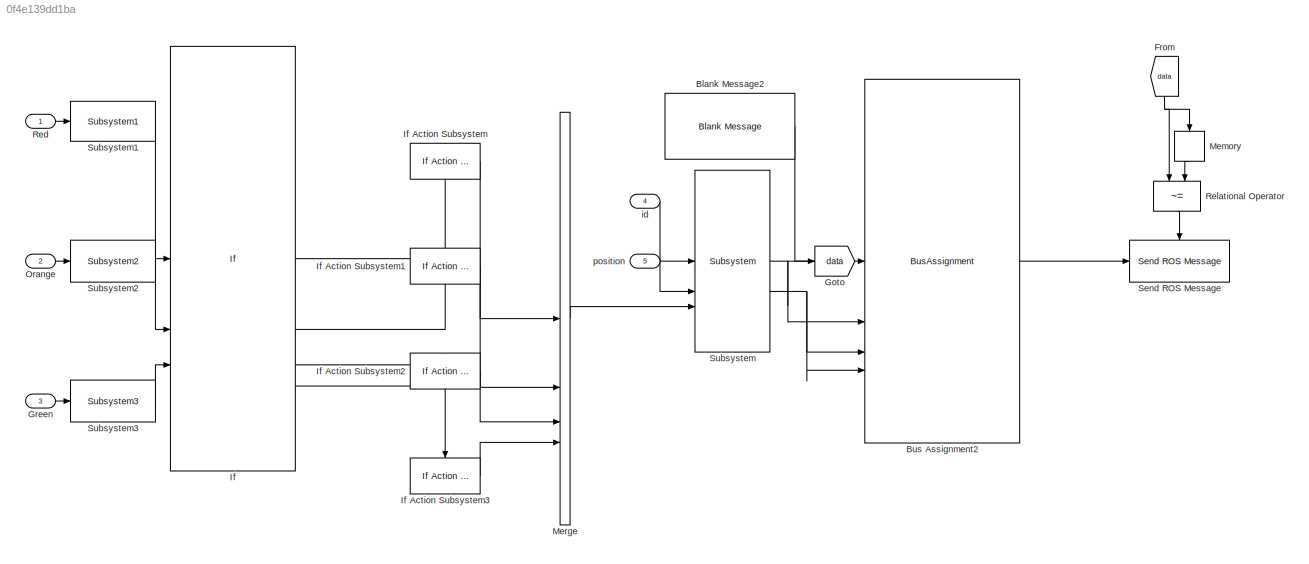
MODEL slx_0f4e139dd1ba
KIND model
CONFIG AbsTol = auto
CONFIG EnableMultiTasking = off
CONFIG FixedStep = auto
CONFIG MaxStep = auto
CONFIG MinStep = auto
CONFIG RelTol = 1e-3
CONFIG SampleTimeConstraint = Unconstrained
CONFIG SolverName = VariableStepAuto
CONFIG StartTime = 0.0
CONFIG StopTime = 10.0
BLOCK [Reference] Blank Message2  REF=robotlib/Blank Message
  SourceBlock = robotlib/Blank Message
  SourceType = ROS Blank Message
BLOCK [BusAssignment] Bus Assignment2
  AssignedSignals = Data,Data_SL_Info.CurrentLength,Data_SL_Info.ReceivedLength
BLOCK [From] From
  GotoTag = data
  NameLocation = left
BLOCK [Goto] Goto
  GotoTag = data
BLOCK [Inport] Green
  Port = 3
BLOCK [If] If
  ElseIfExpressions = u2 ~= 0, u3 ~= 0
  IfExpression = u1 ~= 0
  NumInputs = 3
BLOCK [Reference] If Action Subsystem  REF=MainLibrary/TrafficLight2ROSmessage/Traffic Light Ros Message/If Action
Subsystem
  SourceBlock = MainLibrary/TrafficLight2ROSmessage/Traffic Light Ros Message/If Action\nSubsystem
  SourceProductName = Custom_Prescan-ROS_Library
  SourceType = SubSystem
BLOCK [Reference] If Action Subsystem1  REF=MainLibrary/TrafficLight2ROSmessage/Traffic Light Ros Message/If Action
Subsystem1
  SourceBlock = MainLibrary/TrafficLight2ROSmessage/Traffic Light Ros Message/If Action\nSubsystem1
  SourceProductName = Custom_Prescan-ROS_Library
  SourceType = SubSystem
BLOCK [Reference] If Action Subsystem2  REF=MainLibrary/TrafficLight2ROSmessage/Traffic Light Ros Message/If Action
Subsystem2
  SourceBlock = MainLibrary/TrafficLight2ROSmessage/Traffic Light Ros Message/If Action\nSubsystem2
  SourceProductName = Custom_Prescan-ROS_Library
  SourceType = SubSystem
BLOCK [Reference] If Action Subsystem3  REF=MainLibrary/TrafficLight2ROSmessage/Traffic Light Ros Message/If Action
Subsystem3
  SourceBlock = MainLibrary/TrafficLight2ROSmessage/Traffic Light Ros Message/If Action\nSubsystem3
  SourceProductName = Custom_Prescan-ROS_Library
  SourceType = SubSystem
BLOCK [Memory] Memory
  InitialCondition = zeros(1,128)
  NameLocation = left
BLOCK [Merge] Merge
  Inputs = 4
BLOCK [Inport] Orange
  Port = 2
BLOCK [Inport] Red
BLOCK [RelationalOperator] Relational Operator
  InputSameDT = off
  NameLocation = left
  Operator = ~=
  OutDataTypeStr = boolean
  RndMeth = Simplest
BLOCK [Reference] Send ROS Message  REF=MainLibrary/TrafficLight2ROSmessage/Traffic Light Ros Message/Send ROS Message
  SourceBlock = MainLibrary/TrafficLight2ROSmessage/Traffic Light Ros Message/Send ROS Message
  SourceProductName = Custom_Prescan-ROS_Library
  SourceType = SubSystem
BLOCK [Reference] Subsystem  REF=MainLibrary/TrafficLight2ROSmessage/Traffic Light Ros Message/Subsystem
  SourceBlock = MainLibrary/TrafficLight2ROSmessage/Traffic Light Ros Message/Subsystem
  SourceProductName = Custom_Prescan-ROS_Library
  SourceType = SubSystem
BLOCK [Reference] Subsystem1  REF=MainLibrary/TrafficLight2ROSmessage/Traffic Light Ros Message/Subsystem1
  SourceBlock = MainLibrary/TrafficLight2ROSmessage/Traffic Light Ros Message/Subsystem1
  SourceProductName = Custom_Prescan-ROS_Library
  SourceType = SubSystem
BLOCK [Reference] Subsystem2  REF=MainLibrary/TrafficLight2ROSmessage/Traffic Light Ros Message/Subsystem2
  SourceBlock = MainLibrary/TrafficLight2ROSmessage/Traffic Light Ros Message/Subsystem2
  SourceProductName = Custom_Prescan-ROS_Library
  SourceType = SubSystem
BLOCK [Reference] Subsystem3  REF=MainLibrary/TrafficLight2ROSmessage/Traffic Light Ros Message/Subsystem3
  SourceBlock = MainLibrary/TrafficLight2ROSmessage/Traffic Light Ros Message/Subsystem3
  SourceProductName = Custom_Prescan-ROS_Library
  SourceType = SubSystem
BLOCK [Inport] id
  Port = 4
BLOCK [Inport] position
  Port = 5
LINE Blank Message2:1 -> Bus Assignment2:1
LINE Bus Assignment2:1 -> Send ROS Message:1
NET From:1 -> Memory:1, Relational Operator:1
LINE Green:1 -> Subsystem3:1
LINE If Action Subsystem1:1 -> Merge:2
LINE If Action Subsystem2:1 -> Merge:3
LINE If Action Subsystem3:1 -> Merge:4
LINE If Action Subsystem:1 -> Merge:1
LINE If:1 -> If Action Subsystem:ifaction
LINE If:2 -> If Action Subsystem1:ifaction
LINE If:3 -> If Action Subsystem2:ifaction
LINE If:4 -> If Action Subsystem3:ifaction
LINE Memory:1 -> Relational Operator:2
LINE Merge:1 -> Subsystem:3
LINE Orange:1 -> Subsystem2:1
LINE Red:1 -> Subsystem1:1
LINE Relational Operator:1 -> Send ROS Message:enable
LINE Subsystem1:1 -> If:1
LINE Subsystem2:1 -> If:2
LINE Subsystem3:1 -> If:3
NET Subsystem:1 -> Bus Assignment2:2, Goto:1
NET Subsystem:2 -> Bus Assignment2:3, Bus Assignment2:4
LINE id:1 -> Subsystem:1
LINE position:1 -> Subsystem:2
note: NET lines group one-source signal fan-out (src -> all destinations, sorted); 1:1 wires keep LINE
